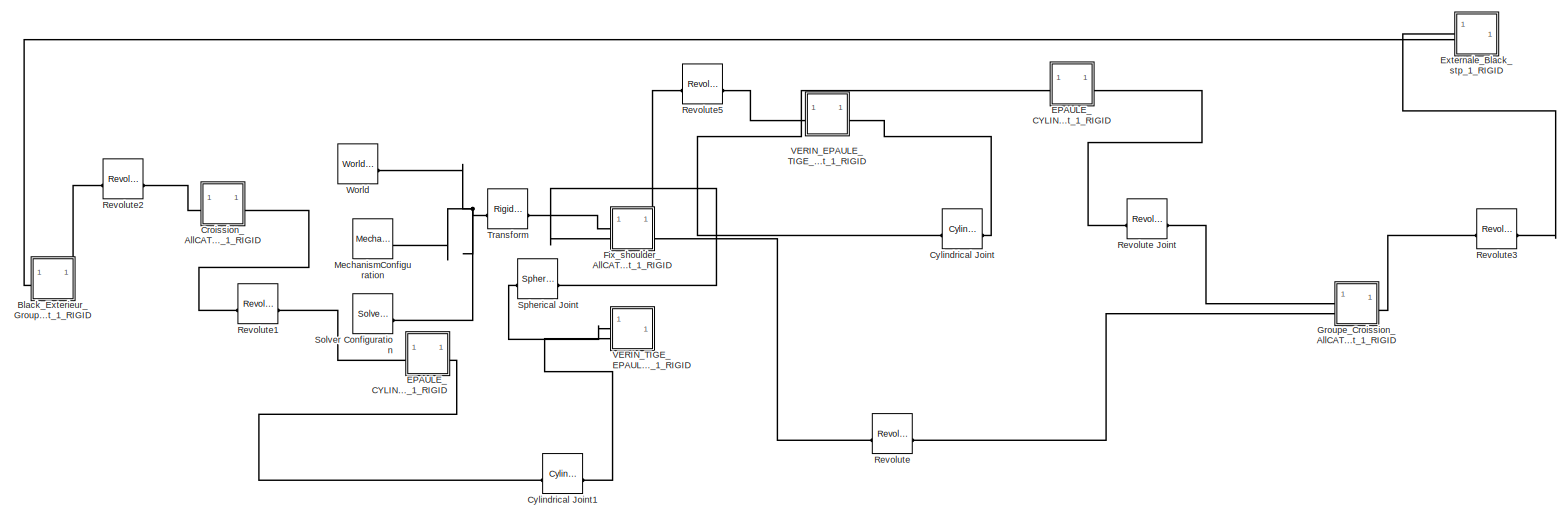
[diagram: root canvas - part 1/1, most of the canvas]
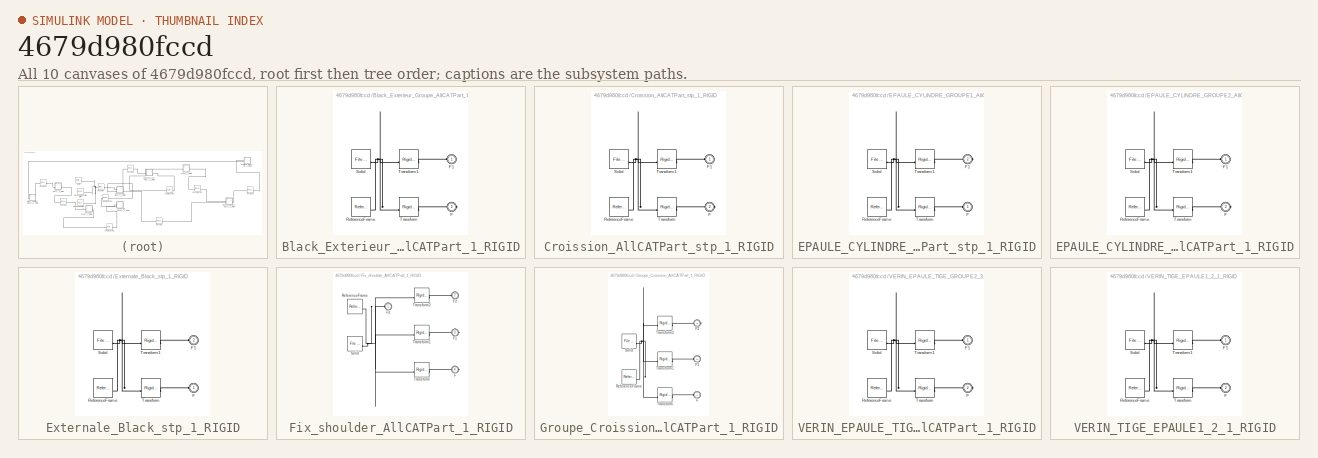
[diagram: thumbnail index - all 10 canvases of the model, root first then tree order]
MODEL slx_4679d980fccd
KIND model
CONFIG AbsTol = auto
CONFIG EnableMultiTasking = off
CONFIG FixedStep = auto
CONFIG MaxStep = auto
CONFIG MinStep = auto
CONFIG RelTol = 1e-3
CONFIG SampleTimeConstraint = Unconstrained
CONFIG SolverName = VariableStepAuto
CONFIG StartTime = 0.0
CONFIG StopTime = 10.0
WORKSPACE source: external: MATLAB File  (data not in archive)
BLOCK [SubSystem] Black_Exterieur_Groupe_AllCATPart_1_RIGID
BLOCK [PMIOPort] Black_Exterieur_Groupe_AllCATPart_1_RIGID/F
  Port = 2
  Side = Right
BLOCK [PMIOPort] Black_Exterieur_Groupe_AllCATPart_1_RIGID/F1
  Side = Left
BLOCK [Reference] Black_Exterieur_Groupe_AllCATPart_1_RIGID/ReferenceFrame  REF=sm_lib/Frames and
Transforms/Reference
Frame
  SourceBlock = sm_lib/Frames and\nTransforms/Reference\nFrame
  SourceType = Reference\nFrame
BLOCK [Reference] Black_Exterieur_Groupe_AllCATPart_1_RIGID/Solid  REF=sm_lib/Body Elements/File Solid
  SourceBlock = sm_lib/Body Elements/File Solid
  SourceType = File Solid
BLOCK [Reference] Black_Exterieur_Groupe_AllCATPart_1_RIGID/Transform  REF=sm_lib/Frames and
Transforms/Rigid
Transform
  SourceBlock = sm_lib/Frames and\nTransforms/Rigid\nTransform
  SourceType = Rigid\nTransform
BLOCK [Reference] Black_Exterieur_Groupe_AllCATPart_1_RIGID/Transform1  REF=sm_lib/Frames and
Transforms/Rigid
Transform
  SourceBlock = sm_lib/Frames and\nTransforms/Rigid\nTransform
  SourceType = Rigid\nTransform
BLOCK [SubSystem] Croission_AllCATPart_stp_1_RIGID
BLOCK [PMIOPort] Croission_AllCATPart_stp_1_RIGID/F
  Port = 2
  Side = Right
BLOCK [PMIOPort] Croission_AllCATPart_stp_1_RIGID/F1
  Side = Left
BLOCK [Reference] Croission_AllCATPart_stp_1_RIGID/ReferenceFrame  REF=sm_lib/Frames and
Transforms/Reference
Frame
  SourceBlock = sm_lib/Frames and\nTransforms/Reference\nFrame
  SourceType = Reference\nFrame
BLOCK [Reference] Croission_AllCATPart_stp_1_RIGID/Solid  REF=sm_lib/Body Elements/File Solid
  SourceBlock = sm_lib/Body Elements/File Solid
  SourceType = File Solid
BLOCK [Reference] Croission_AllCATPart_stp_1_RIGID/Transform  REF=sm_lib/Frames and
Transforms/Rigid
Transform
  SourceBlock = sm_lib/Frames and\nTransforms/Rigid\nTransform
  SourceType = Rigid\nTransform
BLOCK [Reference] Croission_AllCATPart_stp_1_RIGID/Transform1  REF=sm_lib/Frames and
Transforms/Rigid
Transform
  SourceBlock = sm_lib/Frames and\nTransforms/Rigid\nTransform
  SourceType = Rigid\nTransform
BLOCK [Reference] Cylindrical Joint  REF=sm_lib/Joints/Cylindrical
Joint
  SourceBlock = sm_lib/Joints/Cylindrical\nJoint
  SourceType = Cylindrical\nJoint
BLOCK [Reference] Cylindrical Joint1  REF=sm_lib/Joints/Cylindrical
Joint
  SourceBlock = sm_lib/Joints/Cylindrical\nJoint
  SourceType = Cylindrical\nJoint
BLOCK [SubSystem] EPAULE_CYLINDRE_GROUPE1_AllCATPart_stp_1_RIGID
BLOCK [PMIOPort] EPAULE_CYLINDRE_GROUPE1_AllCATPart_stp_1_RIGID/F
  Side = Left
BLOCK [PMIOPort] EPAULE_CYLINDRE_GROUPE1_AllCATPart_stp_1_RIGID/F1
  Port = 2
  Side = Right
BLOCK [Reference] EPAULE_CYLINDRE_GROUPE1_AllCATPart_stp_1_RIGID/ReferenceFrame  REF=sm_lib/Frames and
Transforms/Reference
Frame
  SourceBlock = sm_lib/Frames and\nTransforms/Reference\nFrame
  SourceType = Reference\nFrame
BLOCK [Reference] EPAULE_CYLINDRE_GROUPE1_AllCATPart_stp_1_RIGID/Solid  REF=sm_lib/Body Elements/File Solid
  SourceBlock = sm_lib/Body Elements/File Solid
  SourceType = File Solid
BLOCK [Reference] EPAULE_CYLINDRE_GROUPE1_AllCATPart_stp_1_RIGID/Transform  REF=sm_lib/Frames and
Transforms/Rigid
Transform
  SourceBlock = sm_lib/Frames and\nTransforms/Rigid\nTransform
  SourceType = Rigid\nTransform
BLOCK [Reference] EPAULE_CYLINDRE_GROUPE1_AllCATPart_stp_1_RIGID/Transform1  REF=sm_lib/Frames and
Transforms/Rigid
Transform
  SourceBlock = sm_lib/Frames and\nTransforms/Rigid\nTransform
  SourceType = Rigid\nTransform
BLOCK [SubSystem] EPAULE_CYLINDRE_GROUPE2_AllCATPart_1_RIGID
BLOCK [PMIOPort] EPAULE_CYLINDRE_GROUPE2_AllCATPart_1_RIGID/F
  Port = 2
  Side = Right
BLOCK [PMIOPort] EPAULE_CYLINDRE_GROUPE2_AllCATPart_1_RIGID/F1
  Side = Left
BLOCK [Reference] EPAULE_CYLINDRE_GROUPE2_AllCATPart_1_RIGID/ReferenceFrame  REF=sm_lib/Frames and
Transforms/Reference
Frame
  SourceBlock = sm_lib/Frames and\nTransforms/Reference\nFrame
  SourceType = Reference\nFrame
BLOCK [Reference] EPAULE_CYLINDRE_GROUPE2_AllCATPart_1_RIGID/Solid  REF=sm_lib/Body Elements/File Solid
  SourceBlock = sm_lib/Body Elements/File Solid
  SourceType = File Solid
BLOCK [Reference] EPAULE_CYLINDRE_GROUPE2_AllCATPart_1_RIGID/Transform  REF=sm_lib/Frames and
Transforms/Rigid
Transform
  SourceBlock = sm_lib/Frames and\nTransforms/Rigid\nTransform
  SourceType = Rigid\nTransform
BLOCK [Reference] EPAULE_CYLINDRE_GROUPE2_AllCATPart_1_RIGID/Transform1  REF=sm_lib/Frames and
Transforms/Rigid
Transform
  SourceBlock = sm_lib/Frames and\nTransforms/Rigid\nTransform
  SourceType = Rigid\nTransform
BLOCK [SubSystem] Externale_Black_stp_1_RIGID
BLOCK [PMIOPort] Externale_Black_stp_1_RIGID/F
  Side = Left
BLOCK [PMIOPort] Externale_Black_stp_1_RIGID/F1
  Port = 2
  Side = Left
BLOCK [Reference] Externale_Black_stp_1_RIGID/ReferenceFrame  REF=sm_lib/Frames and
Transforms/Reference
Frame
  SourceBlock = sm_lib/Frames and\nTransforms/Reference\nFrame
  SourceType = Reference\nFrame
BLOCK [Reference] Externale_Black_stp_1_RIGID/Solid  REF=sm_lib/Body Elements/File Solid
  SourceBlock = sm_lib/Body Elements/File Solid
  SourceType = File Solid
BLOCK [Reference] Externale_Black_stp_1_RIGID/Transform  REF=sm_lib/Frames and
Transforms/Rigid
Transform
  SourceBlock = sm_lib/Frames and\nTransforms/Rigid\nTransform
  SourceType = Rigid\nTransform
BLOCK [Reference] Externale_Black_stp_1_RIGID/Transform1  REF=sm_lib/Frames and
Transforms/Rigid
Transform
  SourceBlock = sm_lib/Frames and\nTransforms/Rigid\nTransform
  SourceType = Rigid\nTransform
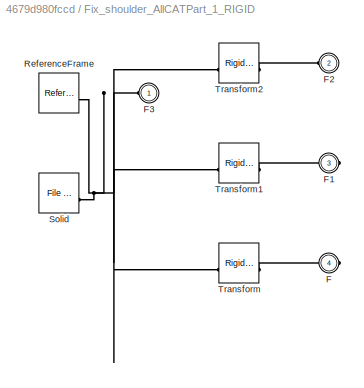
BLOCK [SubSystem] Fix_shoulder_AllCATPart_1_RIGID
BLOCK [PMIOPort] Fix_shoulder_AllCATPart_1_RIGID/F
  Port = 4
  Side = Right
BLOCK [PMIOPort] Fix_shoulder_AllCATPart_1_RIGID/F1
  Port = 3
  Side = Right
BLOCK [PMIOPort] Fix_shoulder_AllCATPart_1_RIGID/F2
  Port = 2
  Side = Left
BLOCK [PMIOPort] Fix_shoulder_AllCATPart_1_RIGID/F3
  Side = Left
BLOCK [Reference] Fix_shoulder_AllCATPart_1_RIGID/ReferenceFrame  REF=sm_lib/Frames and
Transforms/Reference
Frame
  SourceBlock = sm_lib/Frames and\nTransforms/Reference\nFrame
  SourceType = Reference\nFrame
BLOCK [Reference] Fix_shoulder_AllCATPart_1_RIGID/Solid  REF=sm_lib/Body Elements/File Solid
  SourceBlock = sm_lib/Body Elements/File Solid
  SourceType = File Solid
BLOCK [Reference] Fix_shoulder_AllCATPart_1_RIGID/Transform  REF=sm_lib/Frames and
Transforms/Rigid
Transform
  SourceBlock = sm_lib/Frames and\nTransforms/Rigid\nTransform
  SourceType = Rigid\nTransform
BLOCK [Reference] Fix_shoulder_AllCATPart_1_RIGID/Transform1  REF=sm_lib/Frames and
Transforms/Rigid
Transform
  SourceBlock = sm_lib/Frames and\nTransforms/Rigid\nTransform
  SourceType = Rigid\nTransform
BLOCK [Reference] Fix_shoulder_AllCATPart_1_RIGID/Transform2  REF=sm_lib/Frames and
Transforms/Rigid
Transform
  SourceBlock = sm_lib/Frames and\nTransforms/Rigid\nTransform
  SourceType = Rigid\nTransform
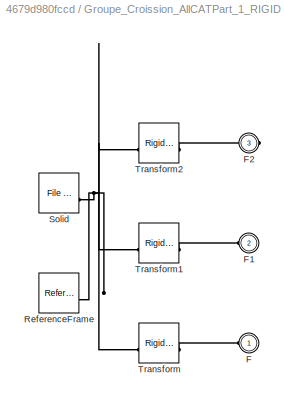
BLOCK [SubSystem] Groupe_Croission_AllCATPart_1_RIGID
BLOCK [PMIOPort] Groupe_Croission_AllCATPart_1_RIGID/F
  Side = Left
BLOCK [PMIOPort] Groupe_Croission_AllCATPart_1_RIGID/F1
  Port = 2
  Side = Left
BLOCK [PMIOPort] Groupe_Croission_AllCATPart_1_RIGID/F2
  Port = 3
  Side = Right
BLOCK [Reference] Groupe_Croission_AllCATPart_1_RIGID/ReferenceFrame  REF=sm_lib/Frames and
Transforms/Reference
Frame
  SourceBlock = sm_lib/Frames and\nTransforms/Reference\nFrame
  SourceType = Reference\nFrame
BLOCK [Reference] Groupe_Croission_AllCATPart_1_RIGID/Solid  REF=sm_lib/Body Elements/File Solid
  SourceBlock = sm_lib/Body Elements/File Solid
  SourceType = File Solid
BLOCK [Reference] Groupe_Croission_AllCATPart_1_RIGID/Transform  REF=sm_lib/Frames and
Transforms/Rigid
Transform
  SourceBlock = sm_lib/Frames and\nTransforms/Rigid\nTransform
  SourceType = Rigid\nTransform
BLOCK [Reference] Groupe_Croission_AllCATPart_1_RIGID/Transform1  REF=sm_lib/Frames and
Transforms/Rigid
Transform
  SourceBlock = sm_lib/Frames and\nTransforms/Rigid\nTransform
  SourceType = Rigid\nTransform
BLOCK [Reference] Groupe_Croission_AllCATPart_1_RIGID/Transform2  REF=sm_lib/Frames and
Transforms/Rigid
Transform
  SourceBlock = sm_lib/Frames and\nTransforms/Rigid\nTransform
  SourceType = Rigid\nTransform
BLOCK [Reference] MechanismConfiguration  REF=sm_lib/Utilities/Mechanism
Configuration
  SourceBlock = sm_lib/Utilities/Mechanism\nConfiguration
  SourceType = Mechanism\nConfiguration
BLOCK [Reference] Revolute  REF=sm_lib/Joints/Revolute Joint
  SourceBlock = sm_lib/Joints/Revolute Joint
  SourceType = Revolute Joint
BLOCK [Reference] Revolute Joint  REF=sm_lib/Joints/Revolute Joint
  SourceBlock = sm_lib/Joints/Revolute Joint
  SourceType = Revolute Joint
BLOCK [Reference] Revolute1  REF=sm_lib/Joints/Revolute Joint
  SourceBlock = sm_lib/Joints/Revolute Joint
  SourceType = Revolute Joint
BLOCK [Reference] Revolute2  REF=sm_lib/Joints/Revolute Joint
  SourceBlock = sm_lib/Joints/Revolute Joint
  SourceType = Revolute Joint
BLOCK [Reference] Revolute3  REF=sm_lib/Joints/Revolute Joint
  SourceBlock = sm_lib/Joints/Revolute Joint
  SourceType = Revolute Joint
BLOCK [Reference] Revolute5  REF=sm_lib/Joints/Revolute Joint
  SourceBlock = sm_lib/Joints/Revolute Joint
  SourceType = Revolute Joint
BLOCK [Reference] Solver Configuration  REF=nesl_utility/Solver
Configuration
  SourceBlock = nesl_utility/Solver\nConfiguration
  SourceType = Solver\nConfiguration
BLOCK [Reference] Spherical Joint  REF=sm_lib/Joints/Spherical
Joint
  SourceBlock = sm_lib/Joints/Spherical\nJoint
  SourceType = Spherical\nJoint
BLOCK [Reference] Transform  REF=sm_lib/Frames and
Transforms/Rigid
Transform
  SourceBlock = sm_lib/Frames and\nTransforms/Rigid\nTransform
  SourceType = Rigid\nTransform
BLOCK [SubSystem] VERIN_EPAULE_TIGE_GROUPE2_3_AllCATPart_1_RIGID
BLOCK [PMIOPort] VERIN_EPAULE_TIGE_GROUPE2_3_AllCATPart_1_RIGID/F
  Port = 2
  Side = Right
BLOCK [PMIOPort] VERIN_EPAULE_TIGE_GROUPE2_3_AllCATPart_1_RIGID/F1
  Side = Left
BLOCK [Reference] VERIN_EPAULE_TIGE_GROUPE2_3_AllCATPart_1_RIGID/ReferenceFrame  REF=sm_lib/Frames and
Transforms/Reference
Frame
  SourceBlock = sm_lib/Frames and\nTransforms/Reference\nFrame
  SourceType = Reference\nFrame
BLOCK [Reference] VERIN_EPAULE_TIGE_GROUPE2_3_AllCATPart_1_RIGID/Solid  REF=sm_lib/Body Elements/File Solid
  SourceBlock = sm_lib/Body Elements/File Solid
  SourceType = File Solid
BLOCK [Reference] VERIN_EPAULE_TIGE_GROUPE2_3_AllCATPart_1_RIGID/Transform  REF=sm_lib/Frames and
Transforms/Rigid
Transform
  SourceBlock = sm_lib/Frames and\nTransforms/Rigid\nTransform
  SourceType = Rigid\nTransform
BLOCK [Reference] VERIN_EPAULE_TIGE_GROUPE2_3_AllCATPart_1_RIGID/Transform1  REF=sm_lib/Frames and
Transforms/Rigid
Transform
  SourceBlock = sm_lib/Frames and\nTransforms/Rigid\nTransform
  SourceType = Rigid\nTransform
BLOCK [SubSystem] VERIN_TIGE_EPAULE1_2_1_RIGID
BLOCK [PMIOPort] VERIN_TIGE_EPAULE1_2_1_RIGID/F
  Port = 2
  Side = Left
BLOCK [PMIOPort] VERIN_TIGE_EPAULE1_2_1_RIGID/F1
  Side = Left
BLOCK [Reference] VERIN_TIGE_EPAULE1_2_1_RIGID/ReferenceFrame  REF=sm_lib/Frames and
Transforms/Reference
Frame
  SourceBlock = sm_lib/Frames and\nTransforms/Reference\nFrame
  SourceType = Reference\nFrame
BLOCK [Reference] VERIN_TIGE_EPAULE1_2_1_RIGID/Solid  REF=sm_lib/Body Elements/File Solid
  SourceBlock = sm_lib/Body Elements/File Solid
  SourceType = File Solid
BLOCK [Reference] VERIN_TIGE_EPAULE1_2_1_RIGID/Transform  REF=sm_lib/Frames and
Transforms/Rigid
Transform
  SourceBlock = sm_lib/Frames and\nTransforms/Rigid\nTransform
  SourceType = Rigid\nTransform
BLOCK [Reference] VERIN_TIGE_EPAULE1_2_1_RIGID/Transform1  REF=sm_lib/Frames and
Transforms/Rigid
Transform
  SourceBlock = sm_lib/Frames and\nTransforms/Rigid\nTransform
  SourceType = Rigid\nTransform
BLOCK [Reference] World  REF=sm_lib/Frames and
Transforms/World Frame
  SourceBlock = sm_lib/Frames and\nTransforms/World Frame
  SourceType = World Frame
PLINE Black_Exterieur_Groupe_AllCATPart_1_RIGID/F1:RConn1 -- Black_Exterieur_Groupe_AllCATPart_1_RIGID/Transform1:RConn1
PLINE Black_Exterieur_Groupe_AllCATPart_1_RIGID/F:RConn1 -- Black_Exterieur_Groupe_AllCATPart_1_RIGID/Transform:RConn1
PNET net1: Black_Exterieur_Groupe_AllCATPart_1_RIGID/ReferenceFrame:RConn1 -- Black_Exterieur_Groupe_AllCATPart_1_RIGID/Solid:RConn1 -- Black_Exterieur_Groupe_AllCATPart_1_RIGID/Transform1:LConn1 -- Black_Exterieur_Groupe_AllCATPart_1_RIGID/Transform:LConn1
PLINE Black_Exterieur_Groupe_AllCATPart_1_RIGID:LConn1 -- Externale_Black_stp_1_RIGID:LConn2
PLINE Black_Exterieur_Groupe_AllCATPart_1_RIGID:RConn1 -- Revolute2:LConn1
PLINE Croission_AllCATPart_stp_1_RIGID/F1:RConn1 -- Croission_AllCATPart_stp_1_RIGID/Transform1:RConn1
PLINE Croission_AllCATPart_stp_1_RIGID/F:RConn1 -- Croission_AllCATPart_stp_1_RIGID/Transform:RConn1
PNET net2: Croission_AllCATPart_stp_1_RIGID/ReferenceFrame:RConn1 -- Croission_AllCATPart_stp_1_RIGID/Solid:RConn1 -- Croission_AllCATPart_stp_1_RIGID/Transform1:LConn1 -- Croission_AllCATPart_stp_1_RIGID/Transform:LConn1
PLINE Croission_AllCATPart_stp_1_RIGID:LConn1 -- Revolute2:RConn1
PLINE Croission_AllCATPart_stp_1_RIGID:RConn1 -- Revolute1:LConn1
PLINE Cylindrical Joint1:LConn1 -- EPAULE_CYLINDRE_GROUPE1_AllCATPart_stp_1_RIGID:RConn1
PLINE Cylindrical Joint1:RConn1 -- VERIN_TIGE_EPAULE1_2_1_RIGID:LConn2
PLINE Cylindrical Joint:LConn1 -- EPAULE_CYLINDRE_GROUPE2_AllCATPart_1_RIGID:LConn1
PLINE Cylindrical Joint:RConn1 -- VERIN_EPAULE_TIGE_GROUPE2_3_AllCATPart_1_RIGID:RConn1
PLINE EPAULE_CYLINDRE_GROUPE1_AllCATPart_stp_1_RIGID/F1:RConn1 -- EPAULE_CYLINDRE_GROUPE1_AllCATPart_stp_1_RIGID/Transform1:RConn1
PLINE EPAULE_CYLINDRE_GROUPE1_AllCATPart_stp_1_RIGID/F:RConn1 -- EPAULE_CYLINDRE_GROUPE1_AllCATPart_stp_1_RIGID/Transform:RConn1
PNET net3: EPAULE_CYLINDRE_GROUPE1_AllCATPart_stp_1_RIGID/ReferenceFrame:RConn1 -- EPAULE_CYLINDRE_GROUPE1_AllCATPart_stp_1_RIGID/Solid:RConn1 -- EPAULE_CYLINDRE_GROUPE1_AllCATPart_stp_1_RIGID/Transform1:LConn1 -- EPAULE_CYLINDRE_GROUPE1_AllCATPart_stp_1_RIGID/Transform:LConn1
PLINE EPAULE_CYLINDRE_GROUPE1_AllCATPart_stp_1_RIGID:LConn1 -- Revolute1:RConn1
PLINE EPAULE_CYLINDRE_GROUPE2_AllCATPart_1_RIGID/F1:RConn1 -- EPAULE_CYLINDRE_GROUPE2_AllCATPart_1_RIGID/Transform1:RConn1
PLINE EPAULE_CYLINDRE_GROUPE2_AllCATPart_1_RIGID/F:RConn1 -- EPAULE_CYLINDRE_GROUPE2_AllCATPart_1_RIGID/Transform:RConn1
PNET net4: EPAULE_CYLINDRE_GROUPE2_AllCATPart_1_RIGID/ReferenceFrame:RConn1 -- EPAULE_CYLINDRE_GROUPE2_AllCATPart_1_RIGID/Solid:RConn1 -- EPAULE_CYLINDRE_GROUPE2_AllCATPart_1_RIGID/Transform1:LConn1 -- EPAULE_CYLINDRE_GROUPE2_AllCATPart_1_RIGID/Transform:LConn1
PLINE EPAULE_CYLINDRE_GROUPE2_AllCATPart_1_RIGID:RConn1 -- Revolute Joint:LConn1
PLINE Externale_Black_stp_1_RIGID/F1:RConn1 -- Externale_Black_stp_1_RIGID/Transform1:RConn1
PLINE Externale_Black_stp_1_RIGID/F:RConn1 -- Externale_Black_stp_1_RIGID/Transform:RConn1
PNET net5: Externale_Black_stp_1_RIGID/ReferenceFrame:RConn1 -- Externale_Black_stp_1_RIGID/Solid:RConn1 -- Externale_Black_stp_1_RIGID/Transform1:LConn1 -- Externale_Black_stp_1_RIGID/Transform:LConn1
PLINE Externale_Black_stp_1_RIGID:LConn1 -- Revolute3:RConn1
PLINE Fix_shoulder_AllCATPart_1_RIGID/F1:RConn1 -- Fix_shoulder_AllCATPart_1_RIGID/Transform1:RConn1
PLINE Fix_shoulder_AllCATPart_1_RIGID/F2:RConn1 -- Fix_shoulder_AllCATPart_1_RIGID/Transform2:RConn1
PNET net6: Fix_shoulder_AllCATPart_1_RIGID/F3:RConn1 -- Fix_shoulder_AllCATPart_1_RIGID/ReferenceFrame:RConn1 -- Fix_shoulder_AllCATPart_1_RIGID/Solid:RConn1 -- Fix_shoulder_AllCATPart_1_RIGID/Transform1:LConn1 -- Fix_shoulder_AllCATPart_1_RIGID/Transform2:LConn1 -- Fix_shoulder_AllCATPart_1_RIGID/Transform:LConn1
PLINE Fix_shoulder_AllCATPart_1_RIGID/F:RConn1 -- Fix_shoulder_AllCATPart_1_RIGID/Transform:RConn1
PLINE Fix_shoulder_AllCATPart_1_RIGID:LConn1 -- Transform:RConn1
PLINE Fix_shoulder_AllCATPart_1_RIGID:LConn2 -- Spherical Joint:RConn1
PLINE Fix_shoulder_AllCATPart_1_RIGID:RConn1 -- Revolute5:LConn1
PLINE Fix_shoulder_AllCATPart_1_RIGID:RConn2 -- Revolute:LConn1
PLINE Groupe_Croission_AllCATPart_1_RIGID/F1:RConn1 -- Groupe_Croission_AllCATPart_1_RIGID/Transform1:RConn1
PLINE Groupe_Croission_AllCATPart_1_RIGID/F2:RConn1 -- Groupe_Croission_AllCATPart_1_RIGID/Transform2:RConn1
PLINE Groupe_Croission_AllCATPart_1_RIGID/F:RConn1 -- Groupe_Croission_AllCATPart_1_RIGID/Transform:RConn1
PNET net7: Groupe_Croission_AllCATPart_1_RIGID/ReferenceFrame:RConn1 -- Groupe_Croission_AllCATPart_1_RIGID/Solid:RConn1 -- Groupe_Croission_AllCATPart_1_RIGID/Transform1:LConn1 -- Groupe_Croission_AllCATPart_1_RIGID/Transform2:LConn1 -- Groupe_Croission_AllCATPart_1_RIGID/Transform:LConn1
PLINE Groupe_Croission_AllCATPart_1_RIGID:LConn1 -- Revolute Joint:RConn1
PLINE Groupe_Croission_AllCATPart_1_RIGID:LConn2 -- Revolute:RConn1
PLINE Groupe_Croission_AllCATPart_1_RIGID:RConn1 -- Revolute3:LConn1
PNET net8: MechanismConfiguration:RConn1 -- Solver Configuration:RConn1 -- Transform:LConn1 -- World:RConn1
PLINE Revolute5:RConn1 -- VERIN_EPAULE_TIGE_GROUPE2_3_AllCATPart_1_RIGID:LConn1
PLINE Spherical Joint:LConn1 -- VERIN_TIGE_EPAULE1_2_1_RIGID:LConn1
PLINE VERIN_EPAULE_TIGE_GROUPE2_3_AllCATPart_1_RIGID/F1:RConn1 -- VERIN_EPAULE_TIGE_GROUPE2_3_AllCATPart_1_RIGID/Transform1:RConn1
PLINE VERIN_EPAULE_TIGE_GROUPE2_3_AllCATPart_1_RIGID/F:RConn1 -- VERIN_EPAULE_TIGE_GROUPE2_3_AllCATPart_1_RIGID/Transform:RConn1
PNET net9: VERIN_EPAULE_TIGE_GROUPE2_3_AllCATPart_1_RIGID/ReferenceFrame:RConn1 -- VERIN_EPAULE_TIGE_GROUPE2_3_AllCATPart_1_RIGID/Solid:RConn1 -- VERIN_EPAULE_TIGE_GROUPE2_3_AllCATPart_1_RIGID/Transform1:LConn1 -- VERIN_EPAULE_TIGE_GROUPE2_3_AllCATPart_1_RIGID/Transform:LConn1
PLINE VERIN_TIGE_EPAULE1_2_1_RIGID/F1:RConn1 -- VERIN_TIGE_EPAULE1_2_1_RIGID/Transform1:RConn1
PLINE VERIN_TIGE_EPAULE1_2_1_RIGID/F:RConn1 -- VERIN_TIGE_EPAULE1_2_1_RIGID/Transform:RConn1
PNET net10: VERIN_TIGE_EPAULE1_2_1_RIGID/ReferenceFrame:RConn1 -- VERIN_TIGE_EPAULE1_2_1_RIGID/Solid:RConn1 -- VERIN_TIGE_EPAULE1_2_1_RIGID/Transform1:LConn1 -- VERIN_TIGE_EPAULE1_2_1_RIGID/Transform:LConn1
note: PNET lines group multi-terminal physical nets as a canonical sorted terminal list (undirected conserving connections); 2-terminal nets keep the pairwise PLINE form
